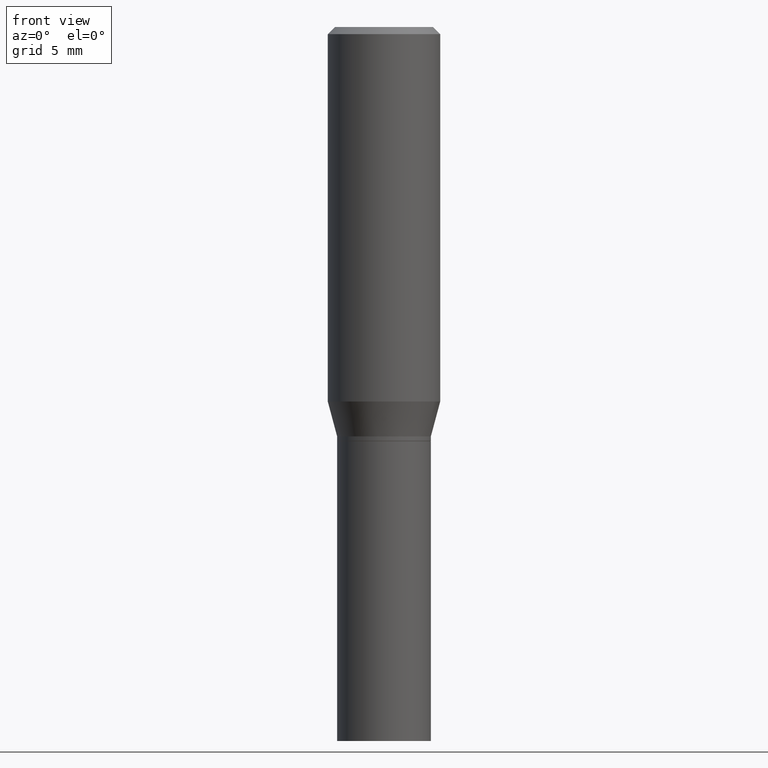
[diagram: clean part render]
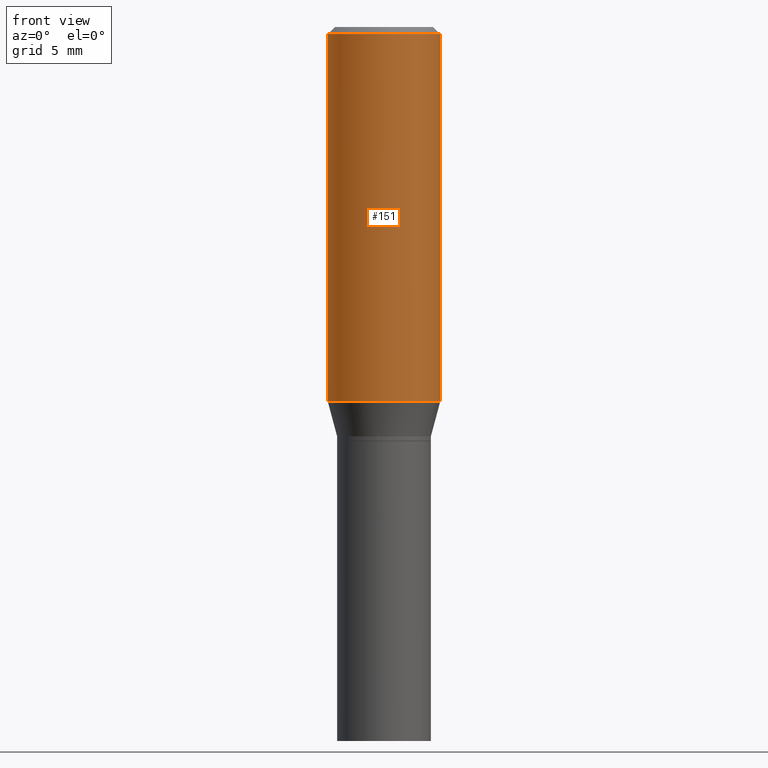
[diagram: same view with one face highlighted and labeled with its STEP entity id]
A machine part, front view. The second image highlights one B-rep face of the part: STEP entity #151.
In plain terms, the highlighted cylindrical surface (partial cylindrical patch) has radius 2.9997 mm, axis along (-0, 0, 1).
Its self-contained STEP definition (entity closure, byte-faithful):
#1 = CARTESIAN_POINT ( 'NONE',  ( -0.1180999999999999966, -5.605231488820216014E-16, -0.01499999999999999944 ) ) ;
#12 = VERTEX_POINT ( 'NONE', #271 ) ;
#19 = CYLINDRICAL_SURFACE ( 'NONE', #112, 0.1180999999999999966 ) ;
#27 = DIRECTION ( 'NONE',  ( 1.000000000000000000, -6.982962677686266711E-15, 4.876176775795936353E-29 ) ) ;
#30 = CARTESIAN_POINT ( 'NONE',  ( 3.668203209277705088E-31, -5.237222008264718399E-17, -0.01499999999999999944 ) ) ;
#62 = CARTESIAN_POINT ( 'NONE',  ( 0.1180999999999999966, -8.246878922347480654E-16, 5.758764772215000440E-30 ) ) ;
#71 = VERTEX_POINT ( 'NONE', #298 ) ;
#77 = VECTOR ( 'NONE', #415, 39.37007874015748143 ) ;
#80 = CARTESIAN_POINT ( 'NONE',  ( 0.000000000000000000, 0.000000000000000000, 0.000000000000000000 ) ) ;
#84 = DIRECTION ( 'NONE',  ( -2.445468806185136877E-29, 3.491481338843145188E-15, 1.000000000000000000 ) ) ;
#86 = DIRECTION ( 'NONE',  ( -2.445468806185136597E-29, 3.491481338843145583E-15, 1.000000000000000000 ) ) ;
#112 = AXIS2_PLACEMENT_3D ( 'NONE', #80, #414, #27 ) ;
#114 = AXIS2_PLACEMENT_3D ( 'NONE', #30, #346, #309 ) ;
#117 = EDGE_CURVE ( 'NONE', #71, #238, #201, .T. ) ;
#120 = EDGE_LOOP ( 'NONE', ( #226, #144, #161, #379 ) ) ;
#122 = CARTESIAN_POINT ( 'NONE',  ( 0.1180999999999999966, -8.770601123173952432E-16, -0.01499999999999999944 ) ) ;
#144 = ORIENTED_EDGE ( 'NONE', *, *, #405, .T. ) ;
#151 = ADVANCED_FACE ( 'NONE', ( #423 ), #19, .T. ) ;
#161 = ORIENTED_EDGE ( 'NONE', *, *, #323, .T. ) ;
#201 = LINE ( 'NONE', #261, #363 ) ;
#226 = ORIENTED_EDGE ( 'NONE', *, *, #117, .F. ) ;
#238 = VERTEX_POINT ( 'NONE', #1 ) ;
#249 = EDGE_CURVE ( 'NONE', #238, #466, #360, .T. ) ;
#261 = CARTESIAN_POINT ( 'NONE',  ( -0.1180999999999999966, 8.391509709326782957E-16, -5.809262341591043784E-30 ) ) ;
#270 = DIRECTION ( 'NONE',  ( 1.000000000000000000, -6.982962677686269077E-15, 0.000000000000000000 ) ) ;
#271 = CARTESIAN_POINT ( 'NONE',  ( 0.1180999999999999966, -3.571663911781501372E-15, -0.7867652016312725038 ) ) ;
#298 = CARTESIAN_POINT ( 'NONE',  ( -0.1180999999999999966, -1.907825048614074518E-15, -0.7867652016312725038 ) ) ;
#305 = LINE ( 'NONE', #62, #77 ) ;
#309 = DIRECTION ( 'NONE',  ( 1.000000000000000000, -6.982962677686266711E-15, 0.000000000000000000 ) ) ;
#323 = EDGE_CURVE ( 'NONE', #12, #466, #305, .T. ) ;
#346 = DIRECTION ( 'NONE',  ( -2.445468806185136597E-29, 3.491481338843145583E-15, 1.000000000000000000 ) ) ;
#360 = CIRCLE ( 'NONE', #114, 0.1180999999999999966 ) ;
#363 = VECTOR ( 'NONE', #84, 39.37007874015748143 ) ;
#369 = AXIS2_PLACEMENT_3D ( 'NONE', #463, #86, #270 ) ;
#379 = ORIENTED_EDGE ( 'NONE', *, *, #249, .F. ) ;
#397 = CIRCLE ( 'NONE', #369, 0.1180999999999999966 ) ;
#405 = EDGE_CURVE ( 'NONE', #71, #12, #397, .T. ) ;
#414 = DIRECTION ( 'NONE',  ( -2.445468806185136597E-29, 3.491481338843145583E-15, 1.000000000000000000 ) ) ;
#415 = DIRECTION ( 'NONE',  ( -2.445468806185136877E-29, 3.491481338843145188E-15, 1.000000000000000000 ) ) ;
#423 = FACE_OUTER_BOUND ( 'NONE', #120, .T. ) ;
#463 = CARTESIAN_POINT ( 'NONE',  ( 1.924009758381236534E-29, -2.746976019546752715E-15, -0.7867652016312725038 ) ) ;
#466 = VERTEX_POINT ( 'NONE', #122 ) ;